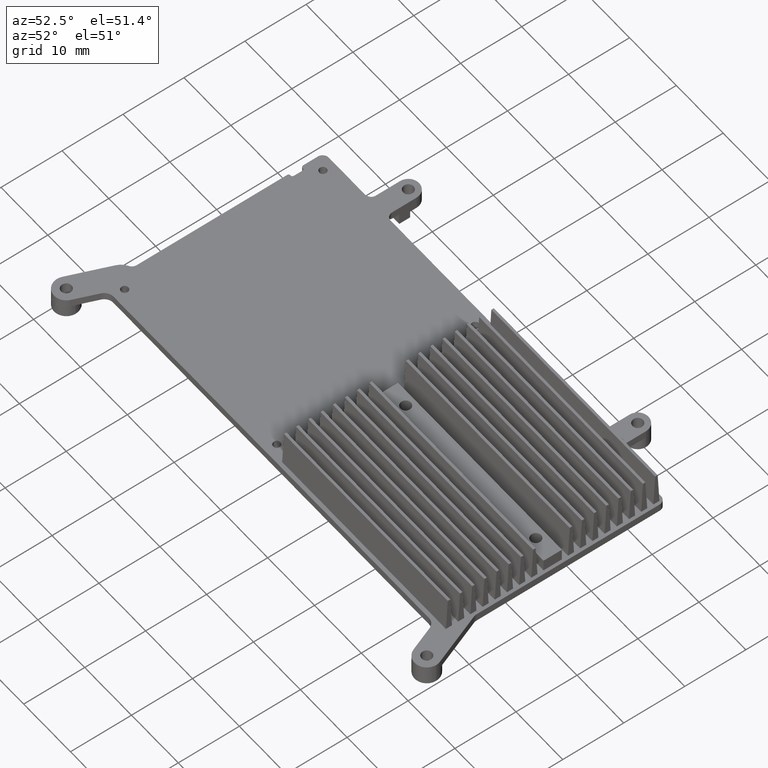
[diagram: clean part render]
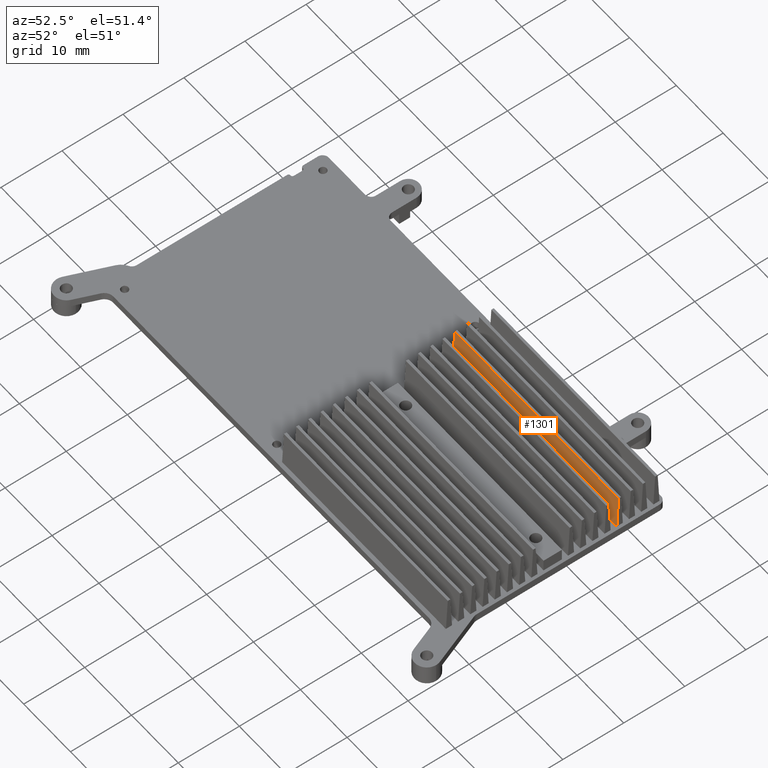
[diagram: same view with one face highlighted and labeled with its STEP entity id]
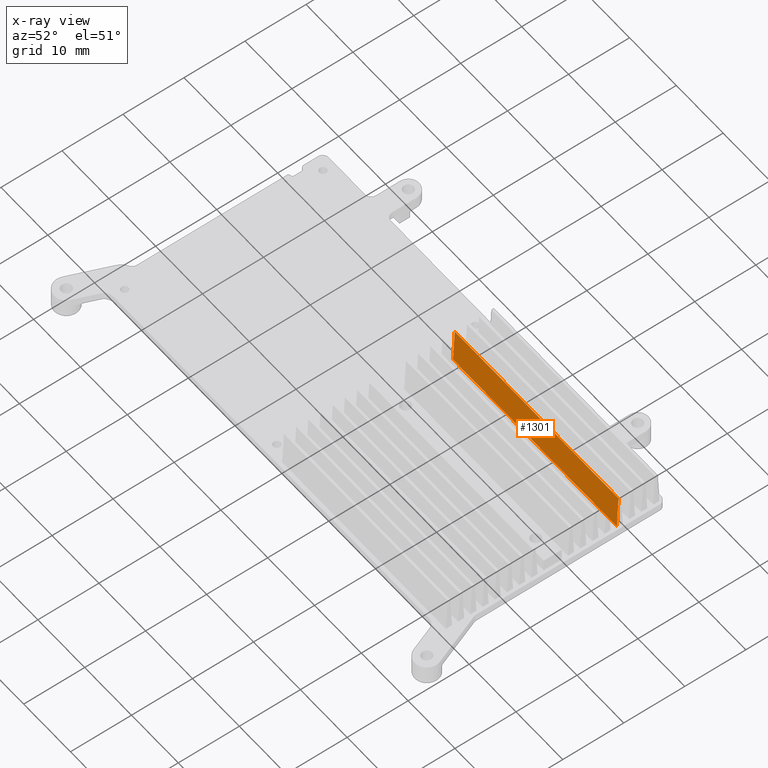
[diagram: x-ray of the same camera — body ghosted, the highlighted face saturated]
A machine part, auxiliary view. The second image highlights one B-rep face of the part: STEP entity #1301.
The next image is the same camera in x-ray: the body ghosted, the highlighted face saturated — about 0% of this face is hidden behind the body in this view.
In plain terms, the highlighted planar face has unit normal (0, -0.9986, 0.0535).
Its self-contained STEP definition (entity closure, byte-faithful):
#3 = LINE ( 'NONE', #4445, #2731 ) ;
#75 = AXIS2_PLACEMENT_3D ( 'NONE', #4776, #1379, #2265 ) ;
#92 = EDGE_CURVE ( 'NONE', #3605, #2071, #1929, .T. ) ;
#412 = CARTESIAN_POINT ( 'NONE',  ( 1.500599999999999900, 6.887719902459999800, -6.099999999999999600 ) ) ;
#436 = FACE_OUTER_BOUND ( 'NONE', #5184, .T. ) ;
#732 = EDGE_CURVE ( 'NONE', #2071, #3063, #2397, .T. ) ;
#985 = PLANE ( 'NONE',  #75 ) ;
#1301 = ADVANCED_FACE ( 'NONE', ( #436 ), #985, .T. ) ;
#1379 = DIRECTION ( 'NONE',  ( 0.0000000000000000000, -0.9985681322700890000, 0.05349472137160941900 ) ) ;
#1408 = VECTOR ( 'NONE', #4646, 1000.000000000000000 ) ;
#1895 = CARTESIAN_POINT ( 'NONE',  ( 1.500600000000000200, 7.187719902459990700, -0.4999999999999988300 ) ) ;
#1915 = DIRECTION ( 'NONE',  ( -0.0000000000000000000, 0.05349472137160941200, 0.9985681322700888900 ) ) ;
#1929 = LINE ( 'NONE', #2562, #1408 ) ;
#2071 = VERTEX_POINT ( 'NONE', #1895 ) ;
#2200 = VERTEX_POINT ( 'NONE', #3598 ) ;
#2265 = DIRECTION ( 'NONE',  ( 0.0000000000000000000, -0.05349472137160941200, -0.9985681322700888900 ) ) ;
#2397 = LINE ( 'NONE', #412, #3260 ) ;
#2562 = CARTESIAN_POINT ( 'NONE',  ( 1.000599999999999900, 7.187719902459985400, -0.4999999999999987200 ) ) ;
#2574 = DIRECTION ( 'NONE',  ( 0.0000000000000000000, -0.05349472137160941200, -0.9985681322700888900 ) ) ;
#2731 = VECTOR ( 'NONE', #1915, 1000.000000000000100 ) ;
#2951 = ORIENTED_EDGE ( 'NONE', *, *, #3680, .T. ) ;
#3023 = CARTESIAN_POINT ( 'NONE',  ( 51.58500000000000100, 6.887719902459999800, -6.099999999999999600 ) ) ;
#3063 = VERTEX_POINT ( 'NONE', #4478 ) ;
#3133 = ORIENTED_EDGE ( 'NONE', *, *, #732, .T. ) ;
#3260 = VECTOR ( 'NONE', #2574, 1000.000000000000100 ) ;
#3517 = CARTESIAN_POINT ( 'NONE',  ( 36.49940000000000100, 7.187719902459990700, -0.4999999999999990600 ) ) ;
#3575 = LINE ( 'NONE', #3023, #4121 ) ;
#3598 = CARTESIAN_POINT ( 'NONE',  ( 36.49940000000000100, 6.887719902459998900, -6.099999999999999600 ) ) ;
#3605 = VERTEX_POINT ( 'NONE', #3517 ) ;
#3680 = EDGE_CURVE ( 'NONE', #2200, #3605, #3, .T. ) ;
#4121 = VECTOR ( 'NONE', #4668, 1000.000000000000000 ) ;
#4445 = CARTESIAN_POINT ( 'NONE',  ( 36.49940000000000100, 6.887719902459999800, -6.099999999999999600 ) ) ;
#4478 = CARTESIAN_POINT ( 'NONE',  ( 1.500599999999999500, 6.887719902459999800, -6.099999999999999600 ) ) ;
#4482 = ORIENTED_EDGE ( 'NONE', *, *, #92, .T. ) ;
#4646 = DIRECTION ( 'NONE',  ( -1.000000000000000000, -0.0000000000000000000, -0.0000000000000000000 ) ) ;
#4668 = DIRECTION ( 'NONE',  ( -1.000000000000000000, -0.0000000000000000000, -0.0000000000000000000 ) ) ;
#4759 = EDGE_CURVE ( 'NONE', #2200, #3063, #3575, .T. ) ;
#4776 = CARTESIAN_POINT ( 'NONE',  ( 1.000599999999999900, 6.887719902459999800, -6.099999999999999600 ) ) ;
#5184 = EDGE_LOOP ( 'NONE', ( #3133, #5203, #2951, #4482 ) ) ;
#5203 = ORIENTED_EDGE ( 'NONE', *, *, #4759, .F. ) ;